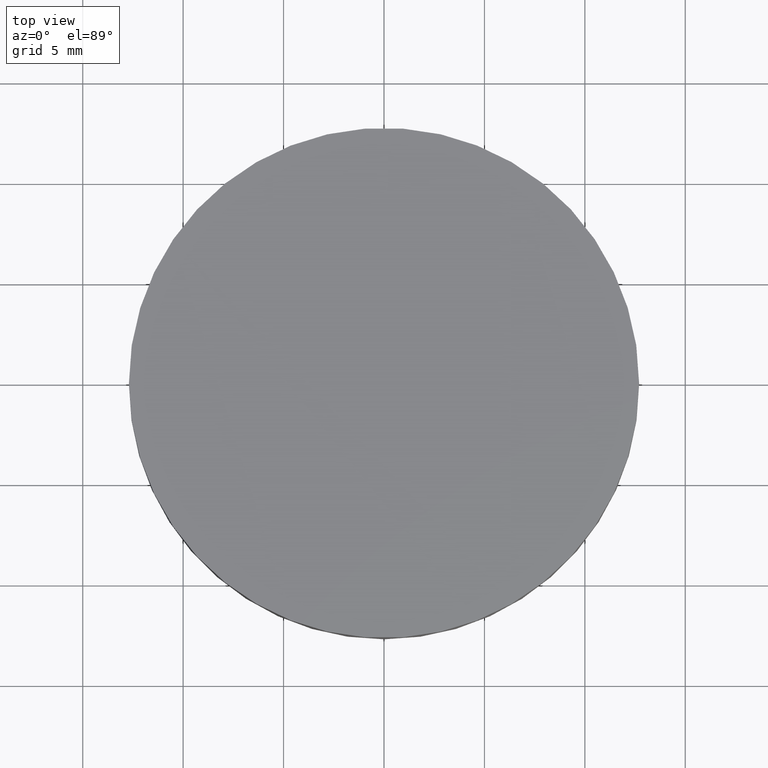
[diagram: clean part render]
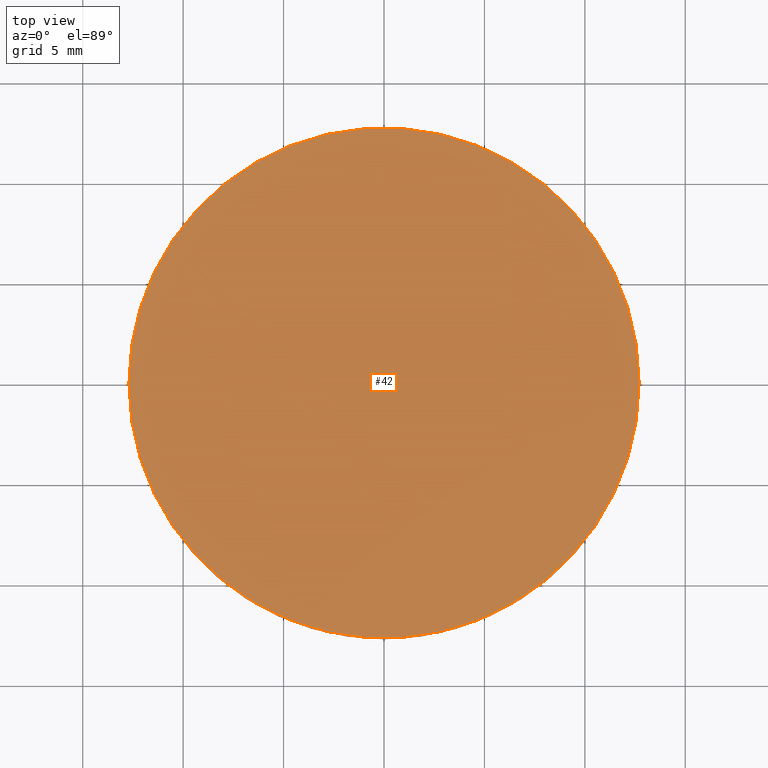
[diagram: same view with one face highlighted and labeled with its STEP entity id]
A machine part, top view. The second image highlights one B-rep face of the part: STEP entity #42.
In plain terms, the highlighted planar face has unit normal (0, 0, 1).
Its self-contained STEP definition (entity closure, byte-faithful):
#1 = ORIENTED_EDGE ( 'NONE', *, *, #167, .F. ) ;
#42 = ADVANCED_FACE ( 'NONE', ( #426 ), #349, .T. ) ;
#90 = DIRECTION ( 'NONE',  ( 1.000000000000000000, 0.000000000000000000, -0.000000000000000000 ) ) ;
#100 = DIRECTION ( 'NONE',  ( -6.993530863780509846E-17, -4.890947394265059749E-33, -1.000000000000000000 ) ) ;
#136 = ORIENTED_EDGE ( 'NONE', *, *, #275, .F. ) ;
#138 = CARTESIAN_POINT ( 'NONE',  ( 1.154110800375616501E-15, -8.881784197001250351E-16, 5.999999999999999112 ) ) ;
#157 = VERTEX_POINT ( 'NONE', #350 ) ;
#167 = EDGE_CURVE ( 'NONE', #227, #157, #268, .T. ) ;
#218 = DIRECTION ( 'NONE',  ( 1.000000000000000000, 0.000000000000000000, -6.829619984160658046E-17 ) ) ;
#227 = VERTEX_POINT ( 'NONE', #357 ) ;
#240 = AXIS2_PLACEMENT_3D ( 'NONE', #308, #257, #218 ) ;
#257 = DIRECTION ( 'NONE',  ( -6.993530863780509846E-17, -4.890947394265059749E-33, -1.000000000000000000 ) ) ;
#268 = CIRCLE ( 'NONE', #240, 12.69999999999999929 ) ;
#271 = DIRECTION ( 'NONE',  ( 1.000000000000000000, 0.000000000000000000, -6.829619984160658046E-17 ) ) ;
#275 = EDGE_CURVE ( 'NONE', #157, #227, #294, .T. ) ;
#294 = CIRCLE ( 'NONE', #533, 12.69999999999999929 ) ;
#308 = CARTESIAN_POINT ( 'NONE',  ( 1.154110800375616501E-15, -8.881784197001250351E-16, 5.999999999999999112 ) ) ;
#342 = EDGE_LOOP ( 'NONE', ( #1, #136 ) ) ;
#349 = PLANE ( 'NONE',  #377 ) ;
#350 = CARTESIAN_POINT ( 'NONE',  ( -12.69999999999999751, 6.671230152170134961E-16, 6.000000000000000000 ) ) ;
#357 = CARTESIAN_POINT ( 'NONE',  ( 12.70000000000000107, -8.881784197001250351E-16, 5.999999999999998224 ) ) ;
#377 = AXIS2_PLACEMENT_3D ( 'NONE', #518, #473, #90 ) ;
#426 = FACE_OUTER_BOUND ( 'NONE', #342, .T. ) ;
#473 = DIRECTION ( 'NONE',  ( 0.000000000000000000, 0.000000000000000000, 1.000000000000000000 ) ) ;
#518 = CARTESIAN_POINT ( 'NONE',  ( 0.000000000000000000, 26.11199999999999832, 6.000000000000000000 ) ) ;
#533 = AXIS2_PLACEMENT_3D ( 'NONE', #138, #100, #271 ) ;